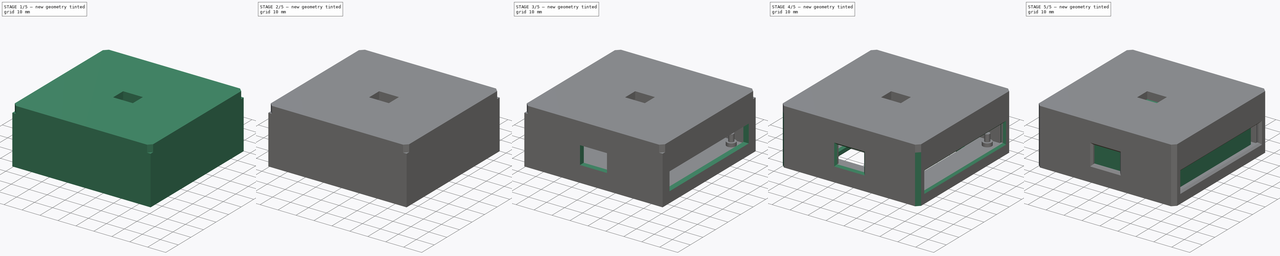
[diagram: build sequence overview — one tinted view per stage of 5, left to right]
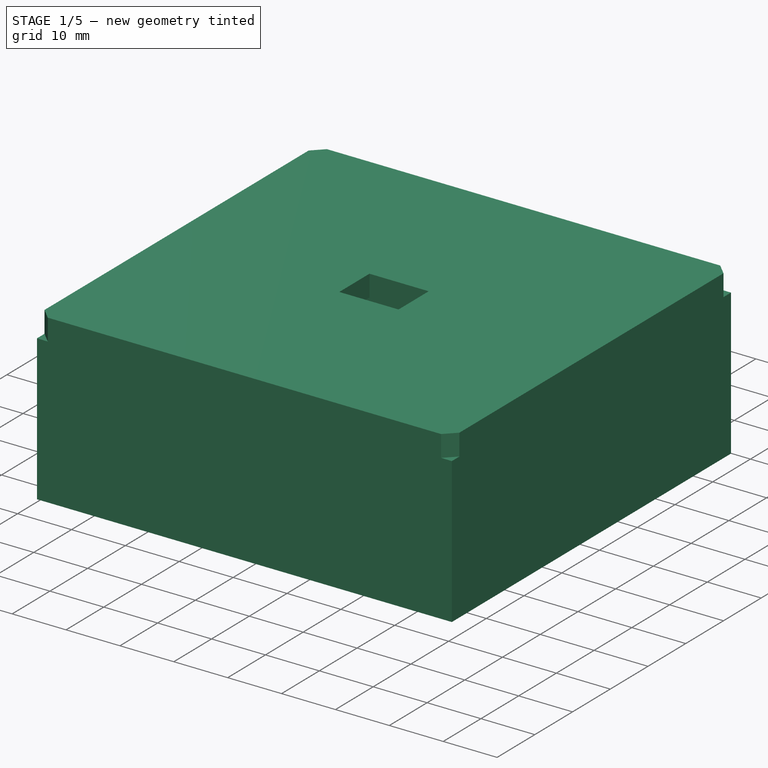
[diagram: stage 1 of 5 — iso view after this stage's code; geometry added in this stage tinted green]
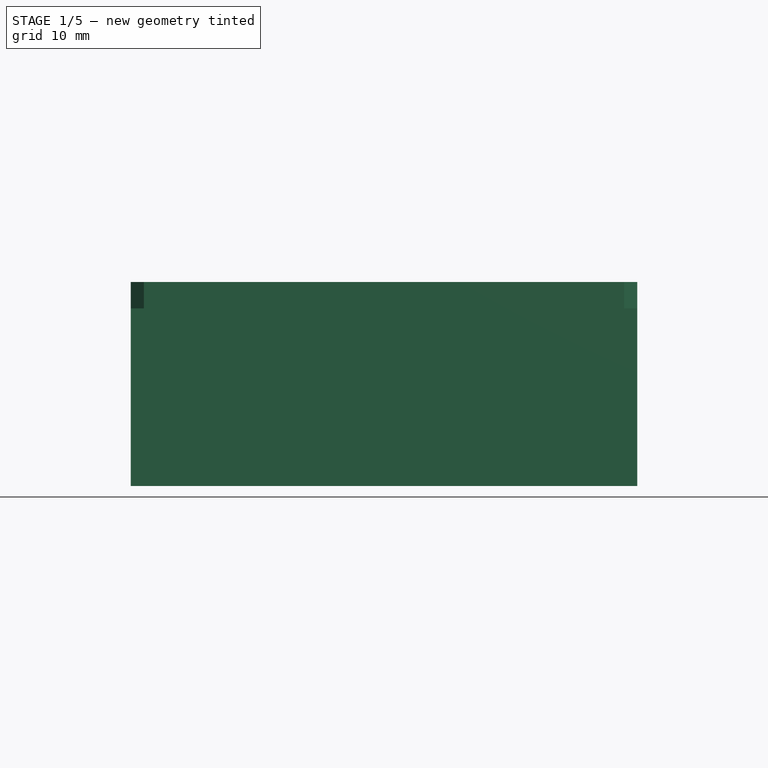
[diagram: stage 1 of 5 — front view after this stage's code; geometry added in this stage tinted green]
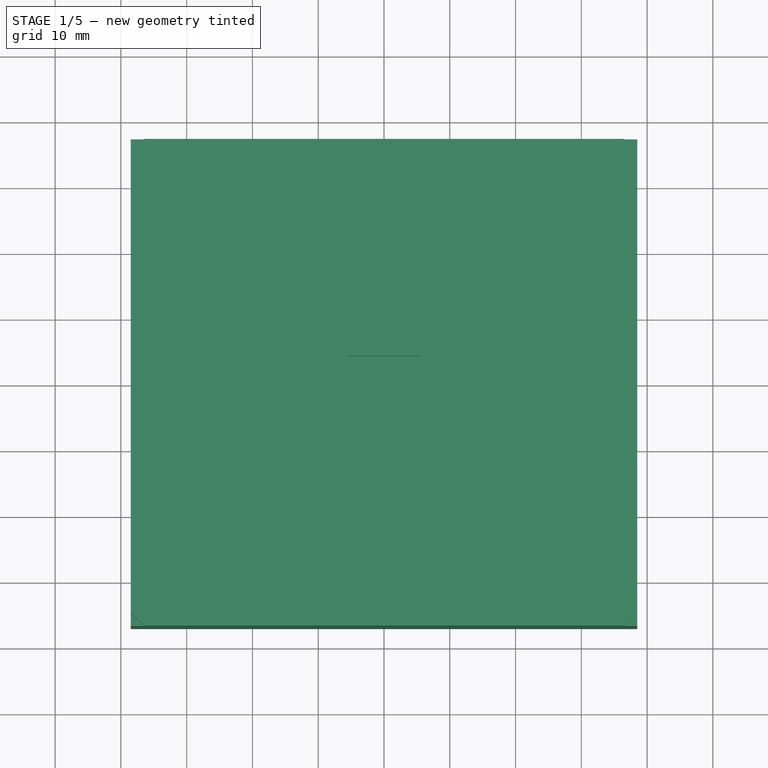
[diagram: stage 1 of 5 — top view after this stage's code; geometry added in this stage tinted green]
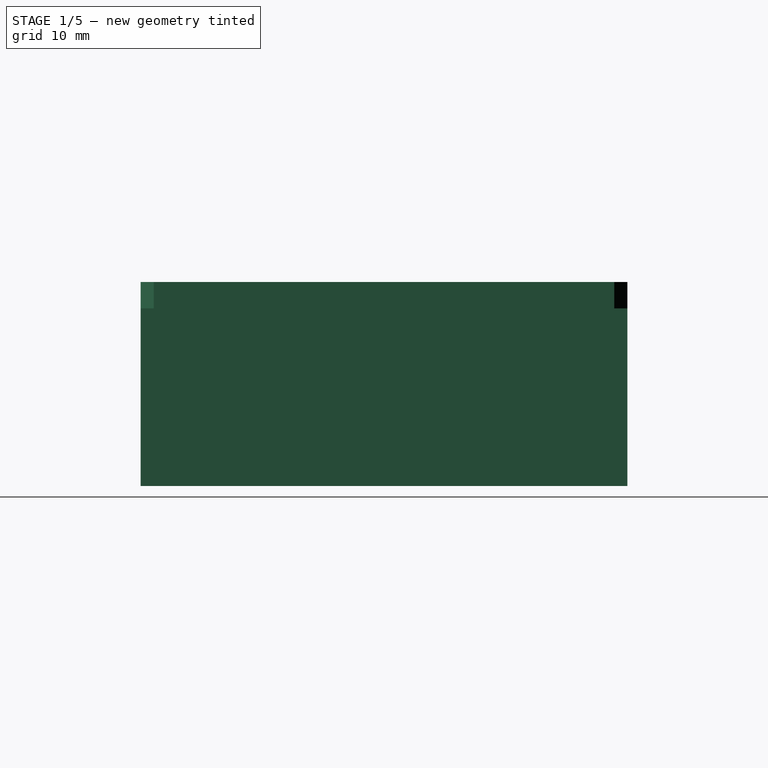
[diagram: stage 1 of 5 — right view after this stage's code; geometry added in this stage tinted green]
FCSTD DOCUMENT  (FreeCAD 0.21R33771 (Git))
Label: ESP32-housing
License: All rights reserved
LicenseURL: http://en.wikipedia.org/wiki/All_rights_reserved
objects: Sketcher::SketchObject×21, PartDesign::Pad×11, PartDesign::Pocket×10, PartDesign::Chamfer×5, PartDesign::Body×3, Spreadsheet::Sheet×1
note: 76 computed .brp shape members not serialized (recipe doc carries the construction recipe); baked Part::Feature solids carry a one-line shape summary decoded from their .brp

FEATURE [PartDesign::Body] Body  label="ESP32-BB"
  Group = -> [Sketch,Pad,Sketch001,Pocket,Sketch002,Pocket001,Sketch003,Pocket002,Sketch004,Pocket003]
  Origin = -> Origin
  Tip = -> Pocket003
FEATURE [Sketcher::SketchObject] Sketch005
  FullyConstrained = true
  MapMode = 5
  Support = -> [XY_Plane001]
  expr: Constraints[10] = Spreadsheet.ESP32_Housing_width
  expr: Constraints[11] = Spreadsheet.ESP32_Housing_length
  sketch-geometry (5):
    g0: LineSegment StartX=-38.5 StartY=37 StartZ=0 EndX=-38.5 EndY=-37 EndZ=0
    g1: LineSegment StartX=-38.5 StartY=-37 StartZ=0 EndX=38.5 EndY=-37 EndZ=0
    g2: LineSegment StartX=38.5 StartY=-37 StartZ=0 EndX=38.5 EndY=37 EndZ=0
    g3: LineSegment StartX=38.5 StartY=37 StartZ=0 EndX=-38.5 EndY=37 EndZ=0
    g4: GeomPoint X=0 Y=0 Z=0
  constraints (12):
    c: Coincident(g0,g1)
    c: Coincident(g1,g2)
    c: Coincident(g2,g3)
    c: Coincident(g3,g0)
    c: Horizontal(g1)
    c: Horizontal(g3)
    c: Vertical(g0)
    c: Vertical(g2)
    c: Symmetric(g1,g0,g4)
    c: Coincident(g4,g-1)
    c: DistanceX(g3,g3) = 77
    c: DistanceY(g0,g0) = 74
FEATURE [PartDesign::Pad] Pad001
  Direction = (0,0,1)
  Length = 27
  Length2 = 10
  Profile = -> Sketch005
  ReferenceAxis = -> Sketch005 [N_Axis]
  Type = 0
  expr: Length = Spreadsheet.ESP32_Housing_height
FEATURE [Sketcher::SketchObject] Sketch006
  FullyConstrained = true
  MapMode = 5
  Placement = pos=(0,0,27) rot=(0,0,1;0rad)
  Support = -> [Pad001]
  expr: Constraints[10] = Spreadsheet.ESP32_Housing_width_inside
  expr: Constraints[11] = Spreadsheet.ESP32_Housing_length_inside
  sketch-geometry (5):
    g0: LineSegment StartX=-35.5 StartY=34 StartZ=0 EndX=-35.5 EndY=-34 EndZ=0
    g1: LineSegment StartX=-35.5 StartY=-34 StartZ=0 EndX=35.5 EndY=-34 EndZ=0
    g2: LineSegment StartX=35.5 StartY=-34 StartZ=0 EndX=35.5 EndY=34 EndZ=0
    g3: LineSegment StartX=35.5 StartY=34 StartZ=0 EndX=-35.5 EndY=34 EndZ=0
    g4: GeomPoint X=0 Y=0 Z=0
  constraints (12):
    c: Coincident(g0,g1)
    c: Coincident(g1,g2)
    c: Coincident(g2,g3)
    c: Coincident(g3,g0)
    c: Horizontal(g1)
    c: Horizontal(g3)
    c: Vertical(g0)
    c: Vertical(g2)
    c: Symmetric(g1,g0,g4)
    c: Coincident(g4,g-1)
    c: DistanceX(g3,g3) = 71
    c: DistanceY(g2,g2) = 68
FEATURE [PartDesign::Pocket] Pocket004
  BaseFeature = -> Pad001
  Direction = (0,0,-1)
  Length = 23
  Length2 = 5
  Profile = -> Sketch006
  ReferenceAxis = -> Sketch006 [N_Axis]
  Type = 0
  expr: Length = Spreadsheet.ESP32_Housing_height - Spreadsheet.ESP32_Housing_floor_thickness
FEATURE [PartDesign::Body] Body001  label="ESP32-Housing"
  Group = -> [Sketch005,Pad001,Sketch006,Pocket004,Sketch007,Sketch008,Sketch009,Sketch010,Pad002,Pad003,Pad004,Pad005,Sketch011,Sketch012,Sketch013,Sketch014,Pad006,Pad007,Pad008,Pad009,Sketch015,Pocket005,Sketch016,Pocket006,Sketch017,Pocket007,Sketch018,Pocket008,Chamfer,Chamfer001,Chamfer002,Chamfer003]
  Origin = -> Origin001
  Tip = -> Chamfer003
FEATURE [Sketcher::SketchObject] Sketch019
  AttachmentOffset = pos=(0,0,27) rot=(0,0,1;0rad)
  FullyConstrained = true
  MapMode = 5
  Placement = pos=(0,0,27) rot=(0,0,1;0rad)
  Support = -> [XY_Plane002]
  expr: .AttachmentOffset.Base.z = Spreadsheet.ESP32_Lid_Z_start
  expr: Constraints[10] = Spreadsheet.ESP32_Lid_width
  expr: Constraints[11] = Spreadsheet.ESP32_Lid_length
  sketch-geometry (5):
    g0: LineSegment StartX=-38.5 StartY=37 StartZ=0 EndX=-38.5 EndY=-37 EndZ=0
    g1: LineSegment StartX=-38.5 StartY=-37 StartZ=0 EndX=38.5 EndY=-37 EndZ=0
    g2: LineSegment StartX=38.5 StartY=-37 StartZ=0 EndX=38.5 EndY=37 EndZ=0
    g3: LineSegment StartX=38.5 StartY=37 StartZ=0 EndX=-38.5 EndY=37 EndZ=0
    g4: GeomPoint X=0 Y=0 Z=0
  constraints (12):
    c: Coincident(g0,g1)
    c: Coincident(g1,g2)
    c: Coincident(g2,g3)
    c: Coincident(g3,g0)
    c: Horizontal(g1)
    c: Horizontal(g3)
    c: Vertical(g0)
    c: Vertical(g2)
    c: Symmetric(g1,g0,g4)
    c: Coincident(g4,g-1)
    c: DistanceX(g3,g3) = 77
    c: DistanceY(g2,g2) = 74
FEATURE [PartDesign::Pad] Pad010
  Direction = (0,0,1)
  Length = 4
  Length2 = 10
  Profile = -> Sketch019
  ReferenceAxis = -> Sketch019 [N_Axis]
  Type = 0
  expr: Length = Spreadsheet.ESP32_Lid_thickness
FEATURE [PartDesign::Chamfer] Chamfer004
  Angle = 45
  Base = -> Pad010 [Edge2,Edge5,Edge1,Edge8]
  BaseFeature = -> Pad010
  ChamferType = 0
  FlipDirection = false
  Size = 2
  Size2 = 1
  SupportTransform = false
  UseAllEdges = false
  expr: Size = Spreadsheet.ESP32_Lid_corner_chamfer
FEATURE [Sketcher::SketchObject] Sketch020
  FullyConstrained = true
  MapMode = 5
  Placement = pos=(0,0,31) rot=(0,0,1;0rad)
  Support = -> [Chamfer004]
  expr: Constraints[10] = Spreadsheet.ESP32_Lid_oled_length
  expr: Constraints[11] = Spreadsheet.ESP32_Lid_oled_width
  sketch-geometry (5):
    g0: LineSegment StartX=-5.5 StartY=4 StartZ=0 EndX=-5.5 EndY=-4 EndZ=0
    g1: LineSegment StartX=-5.5 StartY=-4 StartZ=0 EndX=5.5 EndY=-4 EndZ=0
    g2: LineSegment StartX=5.5 StartY=-4 StartZ=0 EndX=5.5 EndY=4 EndZ=0
    g3: LineSegment StartX=5.5 StartY=4 StartZ=0 EndX=-5.5 EndY=4 EndZ=0
    g4: GeomPoint X=0 Y=0 Z=0
  constraints (12):
    c: Coincident(g0,g1)
    c: Coincident(g1,g2)
    c: Coincident(g2,g3)
    c: Coincident(g3,g0)
    c: Horizontal(g1)
    c: Horizontal(g3)
    c: Vertical(g0)
    c: Vertical(g2)
    c: Symmetric(g1,g0,g4)
    c: Coincident(g4,g-1)
    c: DistanceX(g3,g3) = 11
    c: DistanceY(g2,g2) = 8
FEATURE [PartDesign::Pocket] Pocket009
  BaseFeature = -> Chamfer004
  Direction = (0,0,-1)
  Length = 0
  Length2 = 5
  Profile = -> Sketch020
  ReferenceAxis = -> Sketch020 [N_Axis]
  Type = 3
  UpToFace = -> Chamfer004 [Face2]
FEATURE [PartDesign::Body] Body002  label="ESP32-Housing-Lid"
  Group = -> [Sketch019,Pad010,Chamfer004,Sketch020,Pocket009]
  Origin = -> Origin002
  Tip = -> Pocket009
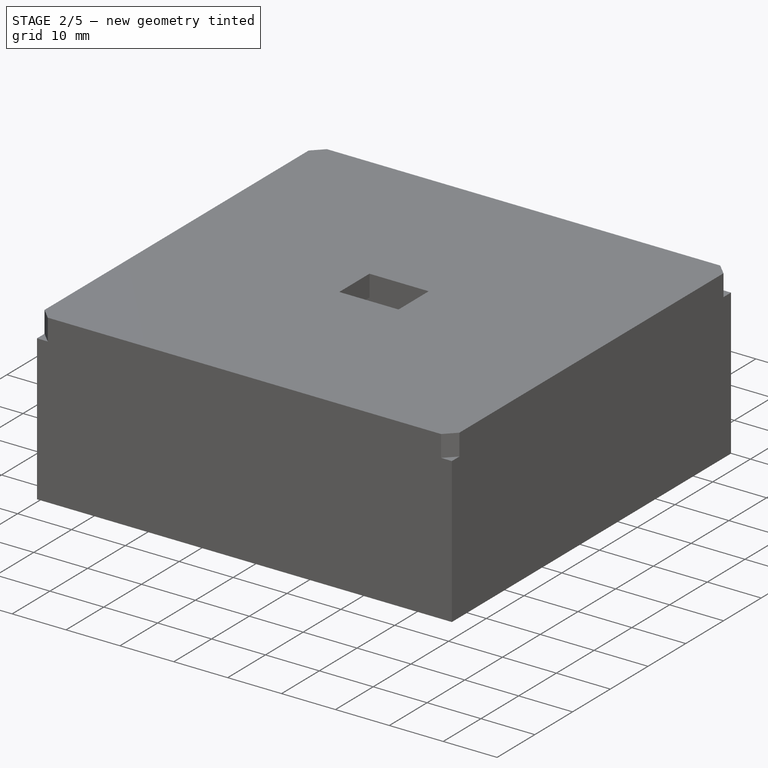
[diagram: stage 2 of 5 — iso view after this stage's code; geometry added in this stage tinted green]
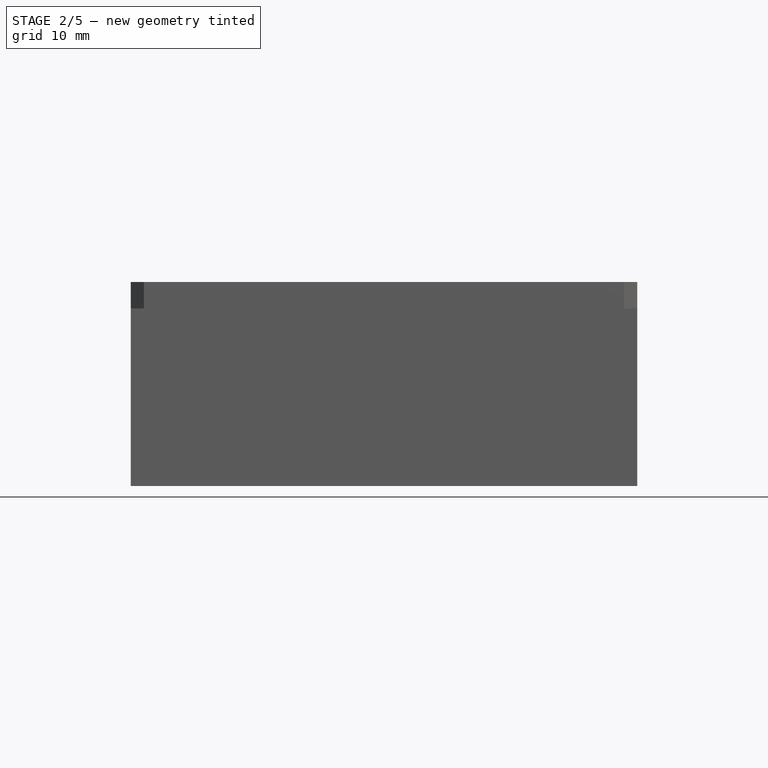
[diagram: stage 2 of 5 — front view after this stage's code; geometry added in this stage tinted green]
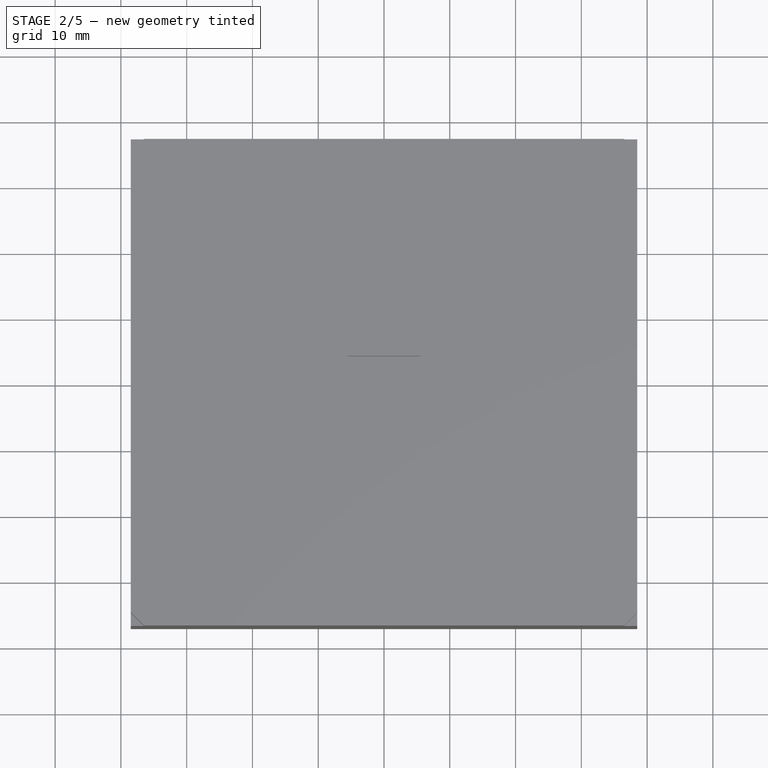
[diagram: stage 2 of 5 — top view after this stage's code; geometry added in this stage tinted green]
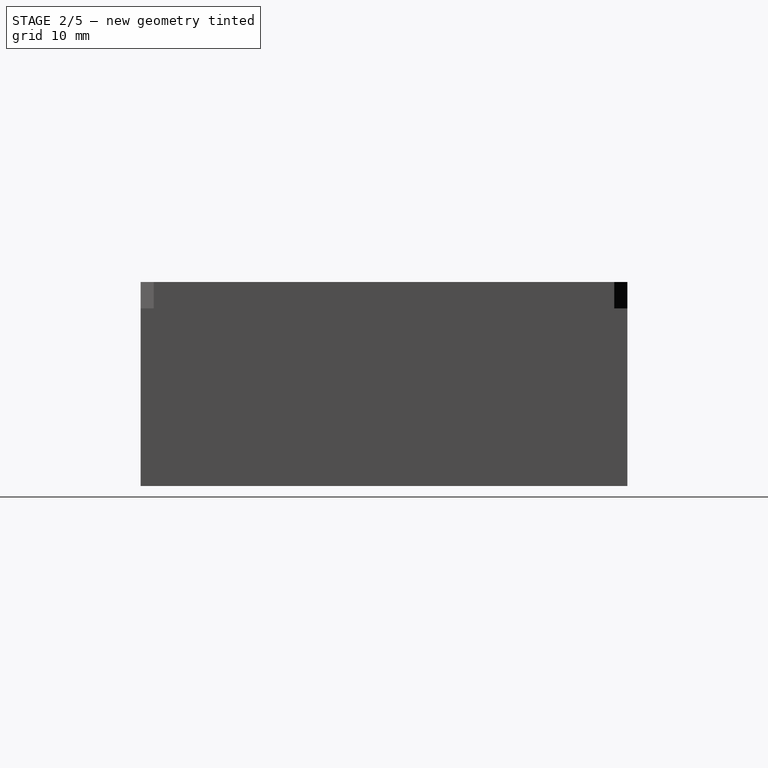
[diagram: stage 2 of 5 — right view after this stage's code; geometry added in this stage tinted green]
FEATURE [Sketcher::SketchObject] Sketch007
  FullyConstrained = true
  MapMode = 5
  Placement = pos=(0,0,4) rot=(0,0,1;0rad)
  Support = -> [Pocket004]
  expr: Constraints[0] = Spreadsheet.ESP32_Housing_post_base_radius
  expr: Constraints[1] = Spreadsheet.ESP32_BB_hole_position_NW_X
  expr: Constraints[2] = Spreadsheet.ESP32_BB_hole_position_NW_Y
  sketch-geometry (1):
    g0: Circle CenterX=30.5 CenterY=29 CenterZ=0 NormalX=0 NormalY=0 NormalZ=1 AngleXU=0 Radius=2.5
  constraints (3):
    c: Radius(g0) = 2.5
    c: DistanceX(g-1,g0) = 30.5
    c: DistanceY(g-1,g0) = 29
FEATURE [Sketcher::SketchObject] Sketch008
  FullyConstrained = true
  MapMode = 5
  Placement = pos=(0,0,4) rot=(0,0,1;0rad)
  Support = -> [Pocket004]
  expr: Constraints[0] = Spreadsheet.ESP32_Housing_post_base_radius
  expr: Constraints[1] = Spreadsheet.ESP32_BB_hole_position_SW_X
  expr: Constraints[2] = -Spreadsheet.ESP32_BB_hole_position_SW_Y
  sketch-geometry (1):
    g0: Circle CenterX=30.5 CenterY=-29 CenterZ=0 NormalX=0 NormalY=0 NormalZ=1 AngleXU=0 Radius=2.5
  constraints (3):
    c: Radius(g0) = 2.5
    c: DistanceX(g-1,g0) = 30.5
    c: DistanceY(g0,g-1) = 29
FEATURE [Sketcher::SketchObject] Sketch009
  FullyConstrained = true
  MapMode = 5
  Placement = pos=(0,0,4) rot=(0,0,1;0rad)
  Support = -> [Pocket004]
  expr: Constraints[0] = Spreadsheet.ESP32_Housing_post_base_radius
  expr: Constraints[1] = -Spreadsheet.ESP32_BB_hole_position_SE_Y
  expr: Constraints[2] = -Spreadsheet.ESP32_BB_hole_position_SE_X
  sketch-geometry (1):
    g0: Circle CenterX=-30.5 CenterY=-29 CenterZ=0 NormalX=0 NormalY=0 NormalZ=1 AngleXU=0 Radius=2.5
  constraints (3):
    c: Radius(g0) = 2.5
    c: DistanceY(g0,g-1) = 29
    c: DistanceX(g0,g-1) = 30.5
FEATURE [Sketcher::SketchObject] Sketch010
  FullyConstrained = true
  MapMode = 5
  Placement = pos=(0,0,4) rot=(0,0,1;0rad)
  Support = -> [Pocket004]
  expr: Constraints[0] = Spreadsheet.ESP32_Housing_post_base_radius
  expr: Constraints[1] = Spreadsheet.ESP32_BB_hole_position_NE_Y
  expr: Constraints[2] = -Spreadsheet.ESP32_BB_hole_position_SE_X
  sketch-geometry (1):
    g0: Circle CenterX=-30.5 CenterY=29 CenterZ=0 NormalX=0 NormalY=0 NormalZ=1 AngleXU=0 Radius=2.5
  constraints (3):
    c: Radius(g0) = 2.5
    c: DistanceY(g-1,g0) = 29
    c: DistanceX(g0,g-1) = 30.5
FEATURE [PartDesign::Pad] Pad002
  BaseFeature = -> Pocket004
  Direction = (0,0,1)
  Length = 2
  Length2 = 10
  Profile = -> Sketch007
  ReferenceAxis = -> Sketch007 [N_Axis]
  Type = 0
  expr: Length = Spreadsheet.ESP32_Housing_post_base_height
FEATURE [PartDesign::Pad] Pad003
  BaseFeature = -> Pad002
  Direction = (0,0,1)
  Length = 2
  Length2 = 10
  Profile = -> Sketch008
  ReferenceAxis = -> Sketch008 [N_Axis]
  Type = 0
  expr: Length = Spreadsheet.ESP32_Housing_post_base_height
FEATURE [PartDesign::Pad] Pad004
  BaseFeature = -> Pad003
  Direction = (0,0,1)
  Length = 2
  Length2 = 10
  Profile = -> Sketch009
  ReferenceAxis = -> Sketch009 [N_Axis]
  Type = 0
  expr: Length = Spreadsheet.ESP32_Housing_post_base_height
FEATURE [PartDesign::Pad] Pad005
  BaseFeature = -> Pad004
  Direction = (0,0,1)
  Length = 2
  Length2 = 10
  Profile = -> Sketch010
  ReferenceAxis = -> Sketch010 [N_Axis]
  Type = 0
  expr: Length = Spreadsheet.ESP32_Housing_post_base_height
FEATURE [Sketcher::SketchObject] Sketch011
  FullyConstrained = true
  MapMode = 5
  Placement = pos=(0,0,4) rot=(0,0,1;0rad)
  Support = -> [Pad005]
  expr: Constraints[0] = Spreadsheet.ESP32_Housing_post_radius
  expr: Constraints[1] = Spreadsheet.ESP32_BB_hole_position_NW_Y
  expr: Constraints[2] = Spreadsheet.ESP32_BB_hole_position_NW_X
  sketch-geometry (1):
    g0: Circle CenterX=30.5 CenterY=29 CenterZ=0 NormalX=0 NormalY=0 NormalZ=1 AngleXU=0 Radius=1.4
  constraints (3):
    c: Radius(g0) = 1.4
    c: DistanceY(g-1,g0) = 29
    c: DistanceX(g-1,g0) = 30.5
FEATURE [Sketcher::SketchObject] Sketch012
  FullyConstrained = true
  MapMode = 5
  Placement = pos=(0,0,4) rot=(0,0,1;0rad)
  Support = -> [Pad005]
  expr: Constraints[0] = Spreadsheet.ESP32_BB_hole_position_SW_X
  expr: Constraints[1] = -Spreadsheet.ESP32_BB_hole_position_SW_Y
  expr: Constraints[2] = Spreadsheet.ESP32_Housing_post_radius
  sketch-geometry (1):
    g0: Circle CenterX=30.5 CenterY=-29 CenterZ=0 NormalX=0 NormalY=0 NormalZ=1 AngleXU=0 Radius=1.4
  constraints (3):
    c: DistanceX(g-1,g0) = 30.5
    c: DistanceY(g0,g-1) = 29
    c: Radius(g0) = 1.4
FEATURE [Sketcher::SketchObject] Sketch013
  FullyConstrained = true
  MapMode = 5
  Placement = pos=(0,0,4) rot=(0,0,1;0rad)
  Support = -> [Pad005]
  expr: Constraints[0] = -Spreadsheet.ESP32_BB_hole_position_SE_Y
  expr: Constraints[1] = -Spreadsheet.ESP32_BB_hole_position_SE_X
  expr: Constraints[2] = Spreadsheet.ESP32_Housing_post_radius
  sketch-geometry (1):
    g0: Circle CenterX=-30.5 CenterY=-29 CenterZ=0 NormalX=0 NormalY=0 NormalZ=1 AngleXU=0 Radius=1.4
  constraints (3):
    c: DistanceY(g0,g-1) = 29
    c: DistanceX(g0,g-1) = 30.5
    c: Radius(g0) = 1.4
FEATURE [Sketcher::SketchObject] Sketch014
  FullyConstrained = true
  MapMode = 5
  Placement = pos=(0,0,4) rot=(0,0,1;0rad)
  Support = -> [Pad005]
  expr: Constraints[0] = -Spreadsheet.ESP32_BB_hole_position_NE_X
  expr: Constraints[1] = Spreadsheet.ESP32_BB_hole_position_NE_Y
  expr: Constraints[2] = Spreadsheet.ESP32_Housing_post_radius
  sketch-geometry (1):
    g0: Circle CenterX=-30.5 CenterY=29 CenterZ=0 NormalX=0 NormalY=0 NormalZ=1 AngleXU=0 Radius=1.4
  constraints (3):
    c: DistanceX(g0,g-1) = 30.5
    c: DistanceY(g-1,g0) = 29
    c: Radius(g0) = 1.4
FEATURE [PartDesign::Pad] Pad006
  BaseFeature = -> Pad005
  Direction = (0,0,1)
  Length = 6
  Length2 = 10
  Profile = -> Sketch011
  ReferenceAxis = -> Sketch011 [N_Axis]
  Type = 0
  expr: Length = Spreadsheet.ESP32_Housing_post_real_height
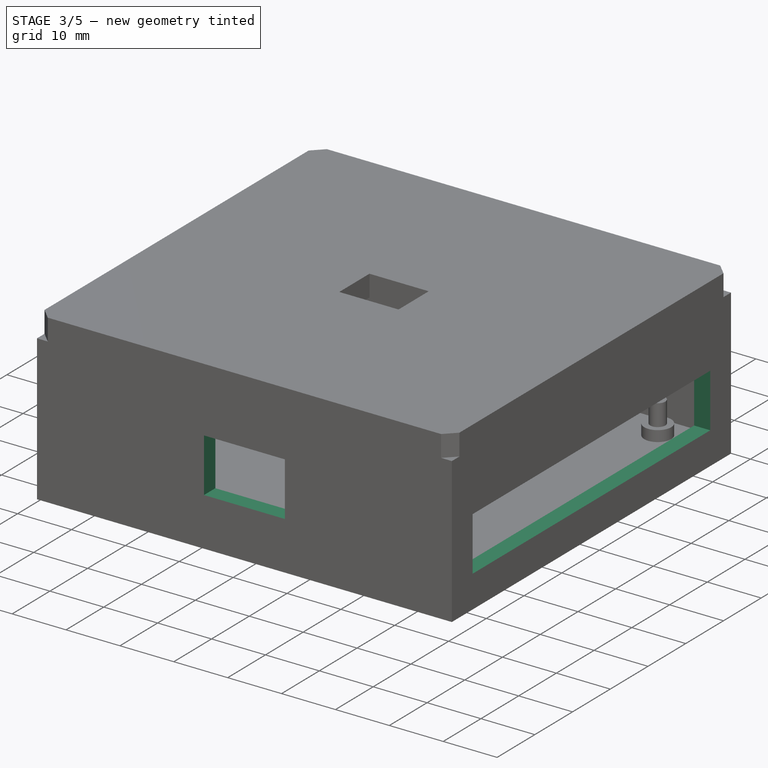
[diagram: stage 3 of 5 — iso view after this stage's code; geometry added in this stage tinted green]
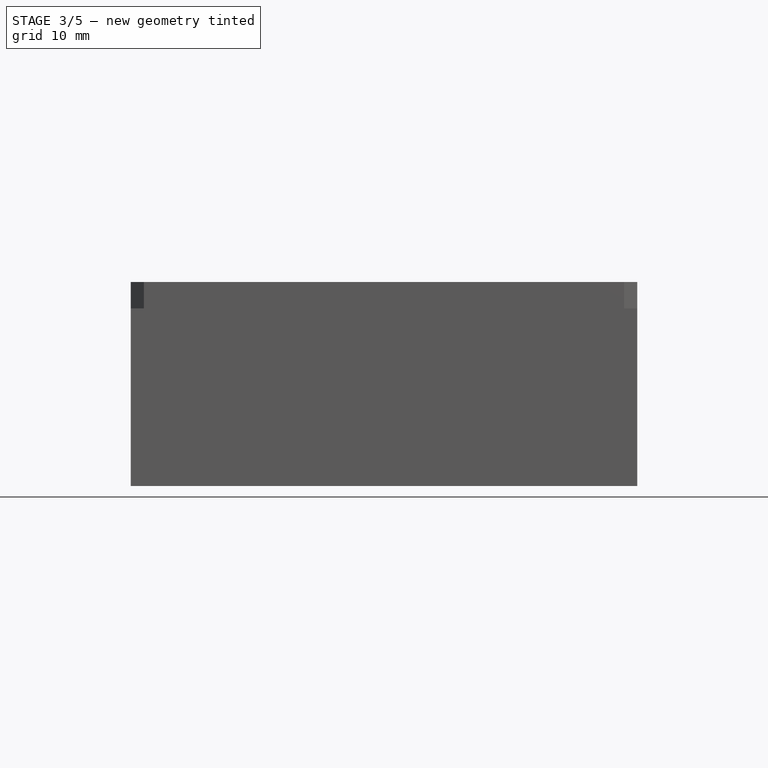
[diagram: stage 3 of 5 — front view after this stage's code; geometry added in this stage tinted green]
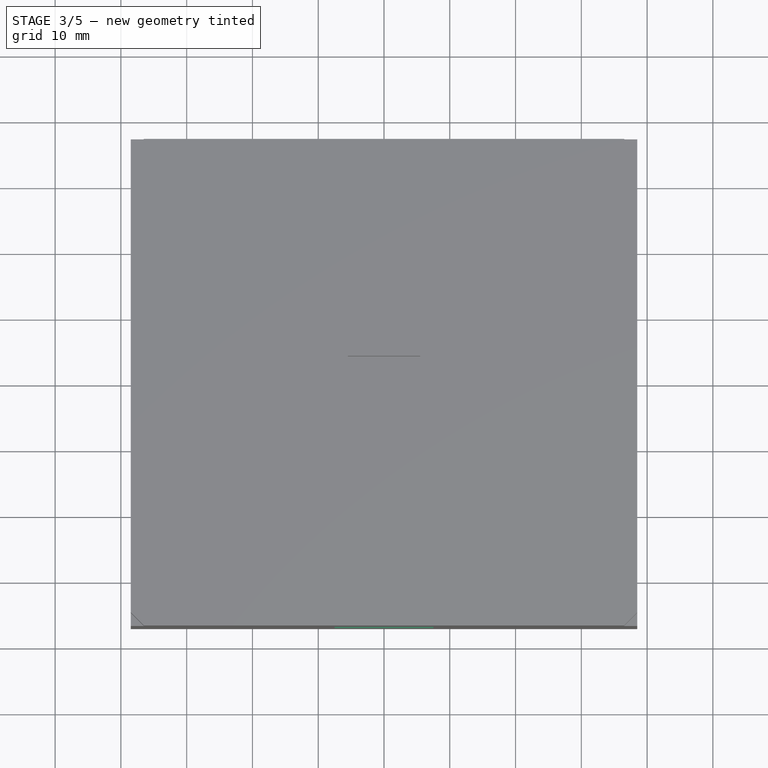
[diagram: stage 3 of 5 — top view after this stage's code; geometry added in this stage tinted green]
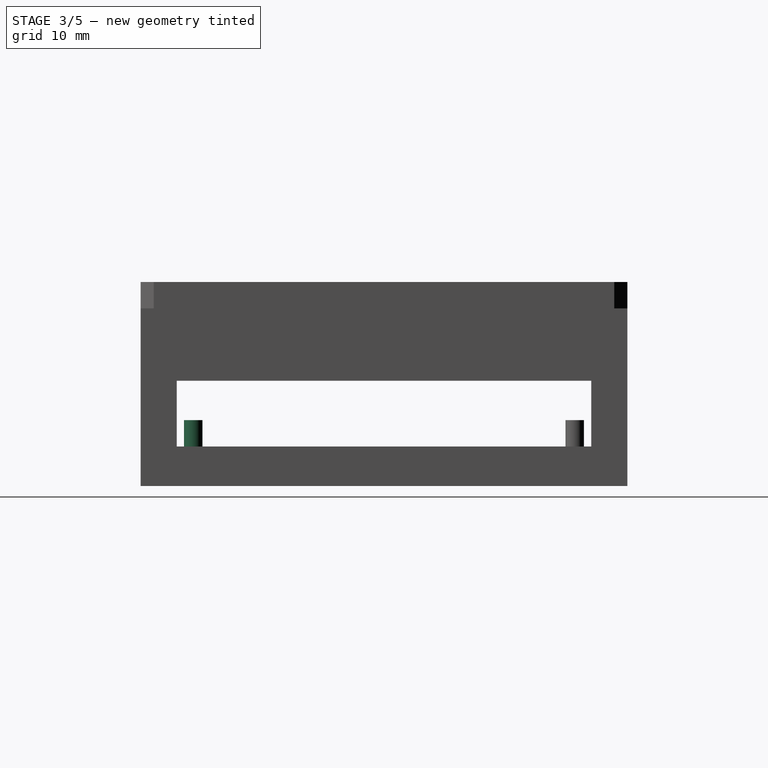
[diagram: stage 3 of 5 — right view after this stage's code; geometry added in this stage tinted green]
FEATURE [PartDesign::Pad] Pad007
  BaseFeature = -> Pad006
  Direction = (0,0,1)
  Length = 6
  Length2 = 10
  Profile = -> Sketch012
  ReferenceAxis = -> Sketch012 [N_Axis]
  Type = 0
  expr: Length = Spreadsheet.ESP32_Housing_post_real_height
FEATURE [PartDesign::Pad] Pad008
  BaseFeature = -> Pad007
  Direction = (0,0,1)
  Length = 6
  Length2 = 10
  Profile = -> Sketch013
  ReferenceAxis = -> Sketch013 [N_Axis]
  Type = 0
  expr: Length = Spreadsheet.ESP32_Housing_post_real_height
FEATURE [PartDesign::Pad] Pad009
  BaseFeature = -> Pad008
  Direction = (0,0,1)
  Length = 6
  Length2 = 10
  Profile = -> Sketch014
  ReferenceAxis = -> Sketch014 [N_Axis]
  Type = 0
  expr: Length = Spreadsheet.ESP32_Housing_post_real_height
FEATURE [Sketcher::SketchObject] Sketch015
  FullyConstrained = true
  MapMode = 5
  Placement = pos=(-38.5,0,0) rot=(0.57735,-0.57735,-0.57735;2.0944rad)
  Support = -> [Pad009]
  expr: Constraints[10] = Spreadsheet.ESP32_Housing_side_cut_width
  expr: Constraints[11] = Spreadsheet.ESP32_Housing_side_cut_start_from_bottom
  expr: Constraints[9] = Spreadsheet.ESP32_Housing_side_cut_length
  sketch-geometry (5):
    g0: LineSegment StartX=-31.5 StartY=16 StartZ=0 EndX=-31.5 EndY=6 EndZ=0
    g1: LineSegment StartX=-31.5 StartY=6 StartZ=0 EndX=31.5 EndY=6 EndZ=0
    g2: LineSegment StartX=31.5 StartY=6 StartZ=0 EndX=31.5 EndY=16 EndZ=0
    g3: LineSegment StartX=31.5 StartY=16 StartZ=0 EndX=-31.5 EndY=16 EndZ=0
    g4: GeomPoint X=0 Y=11 Z=0
  constraints (13):
    c: Coincident(g0,g1)
    c: Coincident(g1,g2)
    c: Coincident(g2,g3)
    c: Coincident(g3,g0)
    c: Horizontal(g1)
    c: Horizontal(g3)
    c: Vertical(g0)
    c: Vertical(g2)
    c: Symmetric(g1,g0,g4)
    c: DistanceX(g3,g3) = 63
    c: DistanceY(g2,g2) = 10
    c: DistanceY(g-1,g4) = 11
    c: DistanceX(g-1,g4) = 0
FEATURE [PartDesign::Pocket] Pocket005
  BaseFeature = -> Pad009
  Direction = (1,0,0)
  Length = 0
  Length2 = 5
  Profile = -> Sketch015
  ReferenceAxis = -> Sketch015 [N_Axis]
  Type = 3
  UpToFace = -> Pad009 [Face7]
FEATURE [Sketcher::SketchObject] Sketch016
  FullyConstrained = true
  MapMode = 5
  Placement = pos=(38.5,0,0) rot=(0.57735,0.57735,0.57735;2.0944rad)
  Support = -> [Pocket005]
  expr: Constraints[10] = Spreadsheet.ESP32_Housing_side_cut_width
  expr: Constraints[11] = Spreadsheet.ESP32_Housing_side_cut_start_from_bottom
  expr: Constraints[9] = Spreadsheet.ESP32_Housing_side_cut_length
  sketch-geometry (5):
    g0: LineSegment StartX=-31.5 StartY=16 StartZ=0 EndX=-31.5 EndY=6 EndZ=0
    g1: LineSegment StartX=-31.5 StartY=6 StartZ=0 EndX=31.5 EndY=6 EndZ=0
    g2: LineSegment StartX=31.5 StartY=6 StartZ=0 EndX=31.5 EndY=16 EndZ=0
    g3: LineSegment StartX=31.5 StartY=16 StartZ=0 EndX=-31.5 EndY=16 EndZ=0
    g4: GeomPoint X=0 Y=11 Z=0
  constraints (13):
    c: Coincident(g0,g1)
    c: Coincident(g1,g2)
    c: Coincident(g2,g3)
    c: Coincident(g3,g0)
    c: Horizontal(g1)
    c: Horizontal(g3)
    c: Vertical(g0)
    c: Vertical(g2)
    c: Symmetric(g1,g0,g4)
    c: DistanceX(g3,g3) = 63
    c: DistanceY(g2,g2) = 10
    c: DistanceY(g-1,g4) = 11
    c: DistanceX(g4,g-1) = 0
FEATURE [PartDesign::Pocket] Pocket006
  BaseFeature = -> Pocket005
  Direction = (-1,0,0)
  Length = 5
  Length2 = 5
  Profile = -> Sketch016
  ReferenceAxis = -> Sketch016 [N_Axis]
  Type = 3
  UpToFace = -> Pocket005 [Face13]
  expr: Length = 5 mm
FEATURE [Sketcher::SketchObject] Sketch017
  FullyConstrained = true
  MapMode = 5
  Placement = pos=(0,-37,0) rot=(1,0,0;1.5708rad)
  Support = -> [Pocket006]
  expr: Constraints[10] = Spreadsheet.ESP32_Housing_usb_cut_length
  expr: Constraints[11] = Spreadsheet.ESP32_Housing_usb_cut_width
  expr: Constraints[12] = Spreadsheet.ESP32_Housing_usb_cut_start_from_bottom
  sketch-geometry (5):
    g0: LineSegment StartX=-7.5 StartY=19 StartZ=0 EndX=-7.5 EndY=9 EndZ=0
    g1: LineSegment StartX=-7.5 StartY=9 StartZ=0 EndX=7.5 EndY=9 EndZ=0
    g2: LineSegment StartX=7.5 StartY=9 StartZ=0 EndX=7.5 EndY=19 EndZ=0
    g3: LineSegment StartX=7.5 StartY=19 StartZ=0 EndX=-7.5 EndY=19 EndZ=0
    g4: GeomPoint X=0 Y=14 Z=0
  constraints (13):
    c: Coincident(g0,g1)
    c: Coincident(g1,g2)
    c: Coincident(g2,g3)
    c: Coincident(g3,g0)
    c: Horizontal(g1)
    c: Horizontal(g3)
    c: Vertical(g0)
    c: Vertical(g2)
    c: Symmetric(g1,g0,g4)
    c: DistanceX(g4,g-1) = 0
    c: DistanceX(g3,g3) = 15
    c: DistanceY(g2,g2) = 10
    c: DistanceY(g-1,g4) = 14
FEATURE [PartDesign::Pocket] Pocket007
  BaseFeature = -> Pocket006
  Direction = (0,1,-2e-16)
  Length = 0
  Length2 = 5
  Profile = -> Sketch017
  ReferenceAxis = -> Sketch017 [N_Axis]
  Type = 3
  UpToFace = -> Pocket006 [Face12]
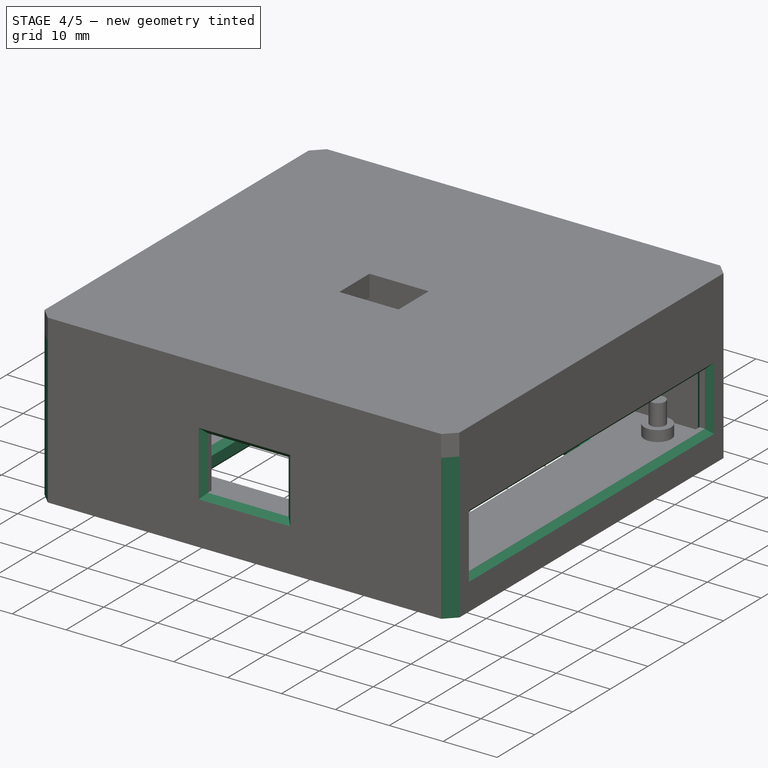
[diagram: stage 4 of 5 — iso view after this stage's code; geometry added in this stage tinted green]
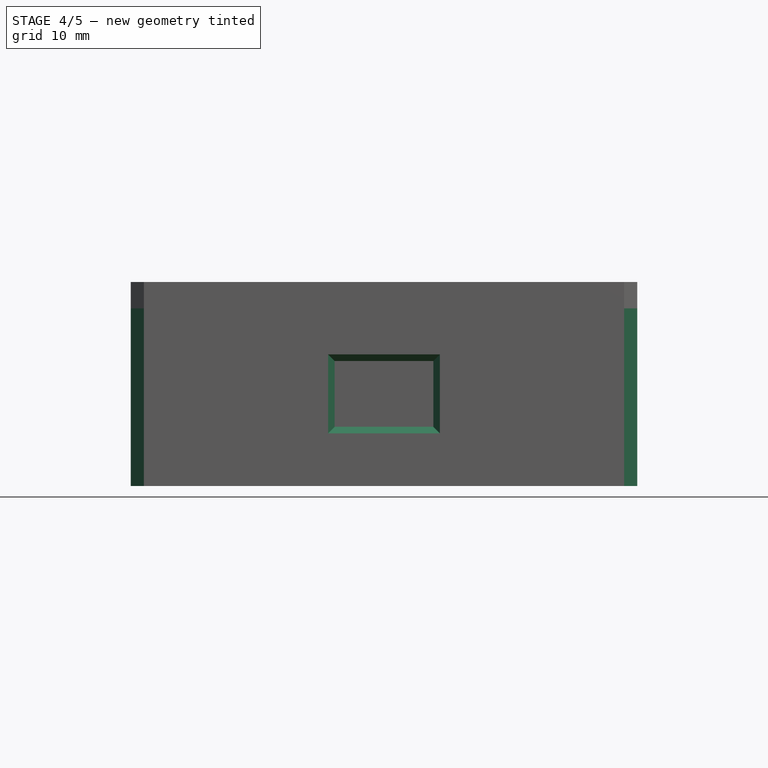
[diagram: stage 4 of 5 — front view after this stage's code; geometry added in this stage tinted green]
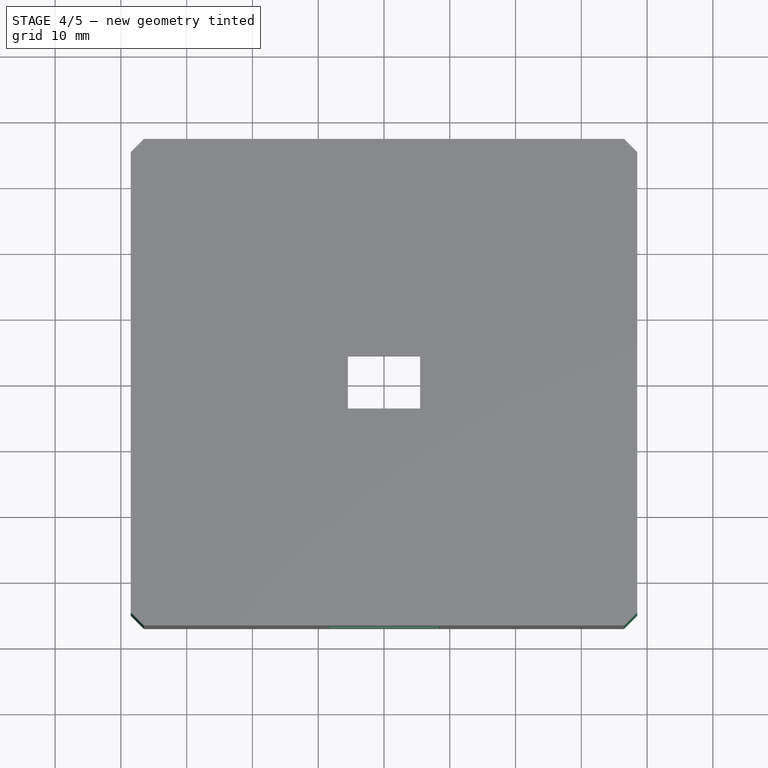
[diagram: stage 4 of 5 — top view after this stage's code; geometry added in this stage tinted green]
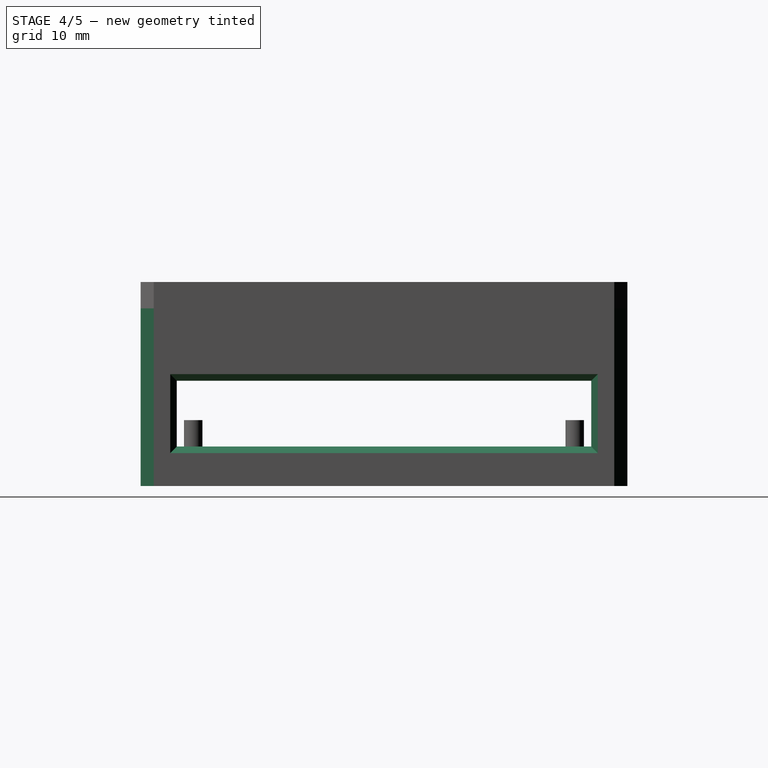
[diagram: stage 4 of 5 — right view after this stage's code; geometry added in this stage tinted green]
FEATURE [Sketcher::SketchObject] Sketch018
  FullyConstrained = true
  MapMode = 5
  Placement = pos=(0,0,0) rot=(1,0,0;3.14159rad)
  Support = -> [Pocket007]
  expr: Constraints[10] = Spreadsheet.ESP32_Housing_floor_cut_length
  expr: Constraints[11] = Spreadsheet.ESP32_Housing_floor_cut_width
  sketch-geometry (5):
    g0: LineSegment StartX=-22 StartY=21 StartZ=0 EndX=-22 EndY=-21 EndZ=0
    g1: LineSegment StartX=-22 StartY=-21 StartZ=0 EndX=22 EndY=-21 EndZ=0
    g2: LineSegment StartX=22 StartY=-21 StartZ=0 EndX=22 EndY=21 EndZ=0
    g3: LineSegment StartX=22 StartY=21 StartZ=0 EndX=-22 EndY=21 EndZ=0
    g4: GeomPoint X=0 Y=0 Z=0
  constraints (12):
    c: Coincident(g0,g1)
    c: Coincident(g1,g2)
    c: Coincident(g2,g3)
    c: Coincident(g3,g0)
    c: Horizontal(g1)
    c: Horizontal(g3)
    c: Vertical(g0)
    c: Vertical(g2)
    c: Symmetric(g1,g0,g4)
    c: Coincident(g4,g-1)
    c: DistanceY(g2,g2) = 42
    c: DistanceX(g3,g3) = 44
FEATURE [PartDesign::Pocket] Pocket008
  BaseFeature = -> Pocket007
  Direction = (0,0,1)
  Length = 0
  Length2 = 5
  Profile = -> Sketch018
  ReferenceAxis = -> Sketch018 [N_Axis]
  Type = 3
  UpToFace = -> Pocket007 [Face23]
FEATURE [PartDesign::Chamfer] Chamfer
  Angle = 45
  Base = -> Pocket008 [Edge27,Edge28,Edge54,Edge55,Edge25,Edge57,Edge56,Edge26]
  BaseFeature = -> Pocket008
  ChamferType = 0
  FlipDirection = false
  Size = 1
  Size2 = 1
  SupportTransform = false
  UseAllEdges = false
FEATURE [PartDesign::Chamfer] Chamfer001
  Angle = 45
  Base = -> Chamfer [Edge5,Edge8,Edge17,Edge36]
  BaseFeature = -> Chamfer
  ChamferType = 0
  FlipDirection = false
  Size = 2
  Size2 = 1
  SupportTransform = false
  UseAllEdges = false
  expr: Size = Spreadsheet.ESP32_Housing_corner_chamfer
FEATURE [PartDesign::Chamfer] Chamfer002
  Angle = 45
  Base = -> Chamfer001 [Edge17,Edge56,Edge18,Edge58,Edge60,Edge19,Edge16,Edge54]
  BaseFeature = -> Chamfer001
  ChamferType = 0
  FlipDirection = false
  Size = 1
  Size2 = 1
  SupportTransform = false
  UseAllEdges = false
FEATURE [PartDesign::Chamfer] Chamfer003
  Angle = 45
  Base = -> Chamfer002 [Edge25,Edge26,Edge24,Edge67,Edge65,Edge63,Edge68,Edge27,Edge47,Edge83,Edge80,Edge46,Edge79,Edge84,Edge48,Edge45]
  BaseFeature = -> Chamfer002
  ChamferType = 0
  FlipDirection = false
  Size = 1
  Size2 = 1
  SupportTransform = false
  UseAllEdges = false
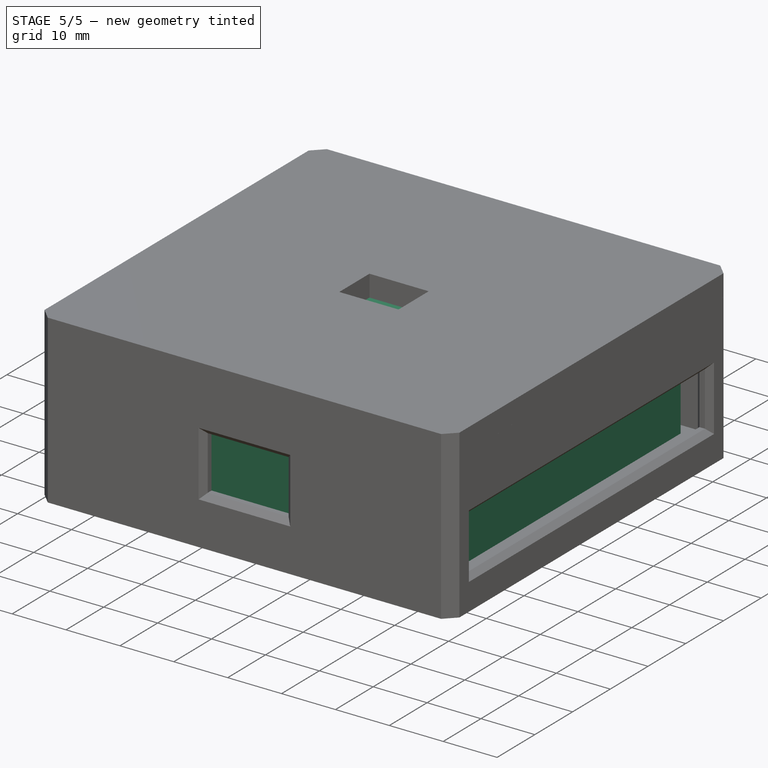
[diagram: stage 5 of 5 — iso view after this stage's code; geometry added in this stage tinted green]
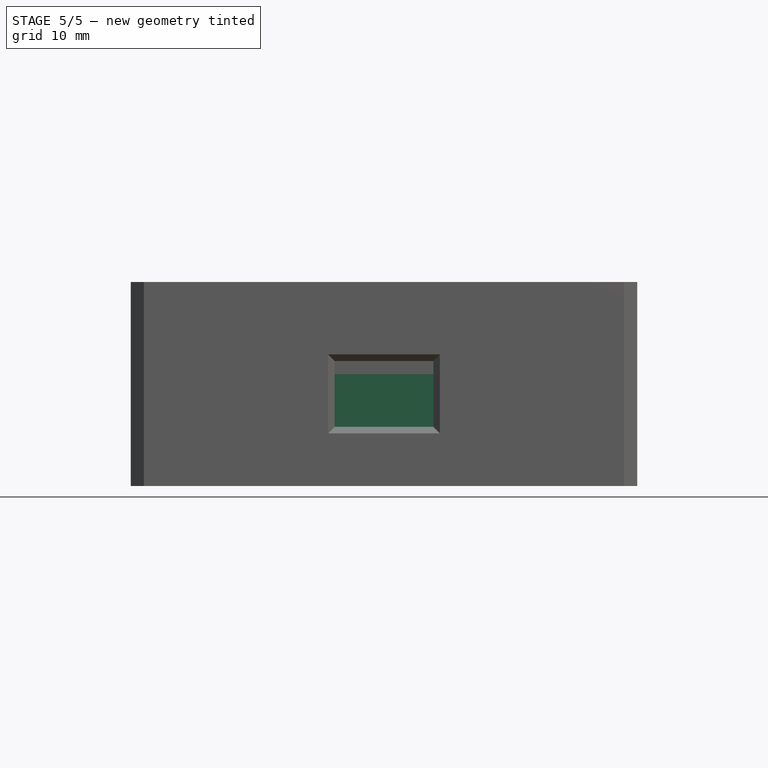
[diagram: stage 5 of 5 — front view after this stage's code; geometry added in this stage tinted green]
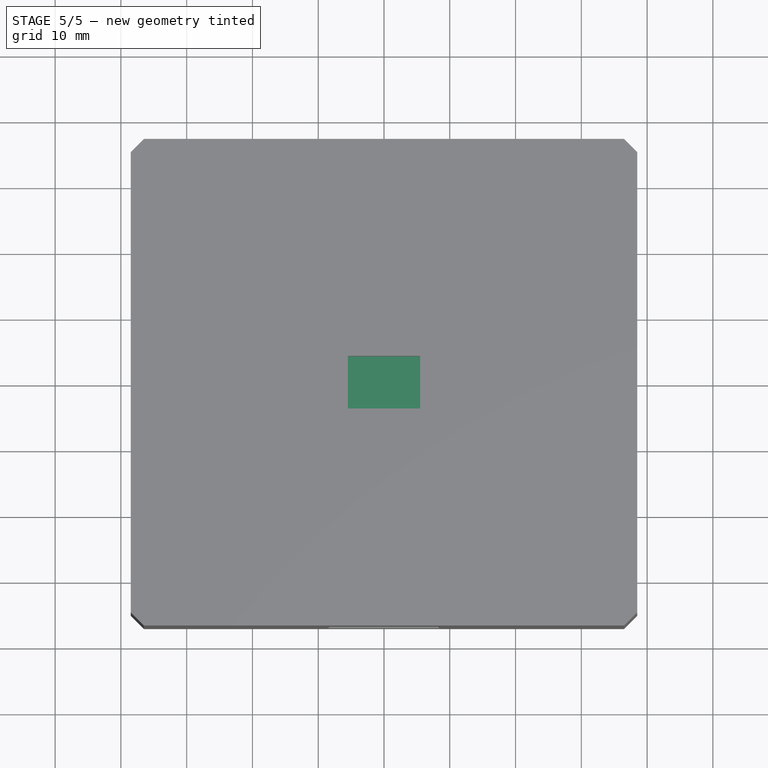
[diagram: stage 5 of 5 — top view after this stage's code; geometry added in this stage tinted green]
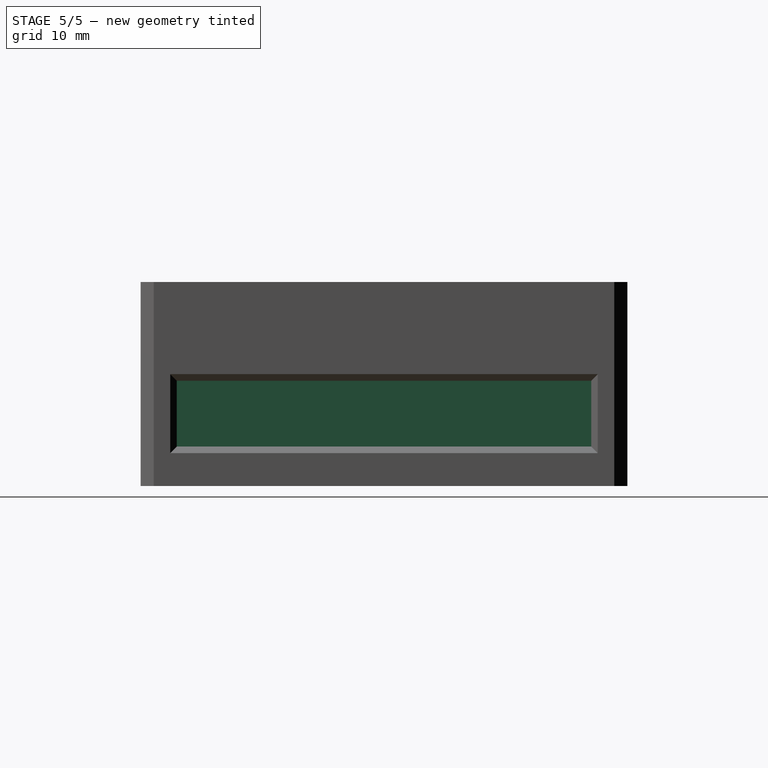
[diagram: stage 5 of 5 — right view after this stage's code; geometry added in this stage tinted green]
FEATURE [Spreadsheet::Sheet] Spreadsheet
  cells = A1='ESP32 Breakout Board; D1='ESP32 Housing; G1='ESP32 Housing Lid; A2='ESP32_BB_length; B2(ESP32_BB_length)=63; D2='ESP32_Housing_length_extra; E2(ESP32_Housing_length_extra)=5; G2='ESP32_Lid_length; H2(ESP32_Lid_length)==ESP32_Housing_length; A3='ESP32_BB_width; B3(ESP32_BB_width)=66; D3='ESP32_Housing_width_extra; E3(ESP32_Housing_width_extra)=5; G3='ESP32_Lid_width; H3(ESP32_Lid_width)==ESP32_Housing_width; A4='ESP32_BB_height; B4(ESP32_BB_height)=17; D4='ESP32_Housing_height_extra; E4(ESP32_Housing_height_extra)=8; G4='ESP32_Lid_thickness; H4(ESP32_Lid_thickness)=4; A5='ESP32_BB_hole_radius; B5(ESP32_BB_hole_radius)==3 / 2; D5='ESP32_Housing_length; E5(ESP32_Housing_length)==ESP32_BB_length + ESP32_Housing_length_extra + ESP32_Housing_wall_thickness; G5='ESP32_Lid_corner_chamfer; H5(ESP32_Lid_corner_chamfer)==ESP32_Housing_corner_chamfer; A6='ESP32_BB_hole_edge; B6(ESP32_BB_hole_edge)=1; D6='ESP32_Housing_width; E6(ESP32_Housing_width)==ESP32_BB_width + ESP32_Housing_width_extra + ESP32_Housing_wall_thickness; G6='ESP32_Lid_Z_start; H6(ESP32_Lid_Z_start)==ESP32_Housing_height; A7='ESP32_BB_hole_edge_offset; B7(ESP32_BB_hole_edge_offset)==ESP32_BB_hole_edge + ESP32_BB_hole_radius; D7='ESP32_Housing_height; E7(ESP32_Housing_height)==ESP32_BB_height + ESP32_Housing_height_extra + ESP32_Housing_post_base_height; A8='ESP32_BB_hole_edge_offset_X; B8(ESP32_BB_hole_edge_offset_X)==ESP32_BB_width / 2 - ESP32_BB_hole_edge_offset; G8='ESP32_Lid_oled_length; H8(ESP32_Lid_oled_length)=11; A9='ESP32_BB_hole_edge_offset_Y; B9(ESP32_BB_hole_edge_offset_Y)==ESP32_BB_length / 2 - ESP32_BB_hole_edge_offset; G9='ESP32_Lid_oled_width; H9(ESP32_Lid_oled_width)=8; A10='ESP32_BB_hole_position_NW_X; B10(ESP32_BB_hole_position_NW_X)==ESP32_BB_hole_edge_offset_X; D10='ESP32_Housing_length_inside; E10(ESP32_Housing_length_inside)==ESP32_BB_length + ESP32_Housing_length_extra; A11='ESP32_BB_hole_position_NW_Y; B11(ESP32_BB_hole_position_NW_Y)==ESP32_BB_hole_edge_offset_Y; D11='ESP32_Housing_width_inside; E11(ESP32_Housing_width_inside)==ESP32_BB_width + ESP32_Housing_width_extra; A12='ESP32_BB_hole_position_SW_X; B12(ESP32_BB_hole_position_SW_X)==ESP32_BB_hole_edge_offset_X; D12='ESP32_Housing_wall_thickness; E12(ESP32_Housing_wall_thickness)=6; A13='ESP32_BB_hole_position_SW_Y; B13(ESP32_BB_hole_position_SW_Y)==-ESP32_BB_hole_edge_offset_Y; D13='ESP32_Housing_floor_thickness; E13(ESP32_Housing_floor_thickness)=4; A14='ESP32_BB_hole_position_SE_X; B14(ESP32_BB_hole_position_SE_X)==-ESP32_BB_hole_edge_offset_X; A15='ESP32_BB_hole_position_SE_Y; B15(ESP32_BB_hole_position_SE_Y)==-ESP32_BB_hole_edge_offset_Y; D15='ESP32_Housing_post_radius_minus_tolerance; E15(ESP32_Housing_post_radius_minus_tolerance)=0.1; A16='ESP32_BB_hole_position_NE_X; B16(ESP32_BB_hole_position_NE_X)==-ESP32_BB_hole_edge_offset_X; D16='ESP32_Housing_post_radius; E16(ESP32_Housing_post_radius)==ESP32_BB_hole_radius - ESP32_Housing_post_radius_minus_tolerance; A17='ESP32_BB_hole_position_NE_Y; B17(ESP32_BB_hole_position_NE_Y)==ESP32_BB_hole_edge_offset_Y; D17='ESP32_Housing_post_height; E17(ESP32_Housing_post_height)=4; D18='ESP32_Housing_post_real_height; E18(ESP32_Housing_post_real_height)==ESP32_Housing_post_height + ESP32_Housing_post_base_height; D19='ESP32_Housing_post_base_radius; E19(ESP32_Housing_post_base_radius)=2.5; D20='ESP32_Housing_post_base_height; E20(ESP32_Housing_post_base_height)=2; D23='ESP32_Housing_side_cut_length_gap; E23(ESP32_Housing_side_cut_length_gap)=5; D24='ESP32_Housing_side_cut_width_gap; E24(ESP32_Housing_side_cut_width_gap)=5; D25='ESP32_Housing_side_cut_length; E25(ESP32_Housing_side_cut_length)==ESP32_Housing_length_inside - ESP32_Housing_side_cut_length_gap; D26='ESP32_Housing_side_cut_width; E26(ESP32_Housing_side_cut_width)=10; D27='ESP32_Housing_side_cut_start_from_bottom; E27(ESP32_Housing_side_cut_start_from_bottom)==ESP32_Housing_floor_thickness + ESP32_Housing_post_base_height + ESP32_Housing_side_cut_width / 2; D29='ESP32_Housing_usb_cut_length; E29(ESP32_Housing_usb_cut_length)=15; D30='ESP32_Housing_usb_cut_width; E30(ESP32_Housing_usb_cut_width)=10; D31='ESP32_Housing_usb_cut_start_from_bottom; E31(ESP32_Housing_usb_cut_start_from_bottom)=14; D32='ESP32_Housing_usb_cut_chamfer; E32(ESP32_Housing_usb_cut_chamfer)=2; D37='ESP32_Housing_floor_cut_length; E37(ESP32_Housing_floor_cut_length)==ESP32_BB_length / 1.5; D38='ESP32_Housing_floor_cut_width; E38(ESP32_Housing_floor_cut_width)==ESP32_BB_width / 1.5; D40='ESP32_Housing_corner_chamfer; E40(ESP32_Housing_corner_chamfer)=2; D42='ESP32_Housing_lid_block_length; E42==ESP32_BB_length / 1.5; D43='ESP32_Housing_lid_block_width; E43==ESP32_BB_width / 1.5
FEATURE [Sketcher::SketchObject] Sketch
  FullyConstrained = true
  MapMode = 5
  Support = -> [XY_Plane]
  expr: Constraints[10] = Spreadsheet.ESP32_BB_width
  expr: Constraints[11] = Spreadsheet.ESP32_BB_length
  sketch-geometry (5):
    g0: LineSegment StartX=-33 StartY=31.5 StartZ=0 EndX=-33 EndY=-31.5 EndZ=0
    g1: LineSegment StartX=-33 StartY=-31.5 StartZ=0 EndX=33 EndY=-31.5 EndZ=0
    g2: LineSegment StartX=33 StartY=-31.5 StartZ=0 EndX=33 EndY=31.5 EndZ=0
    g3: LineSegment StartX=33 StartY=31.5 StartZ=0 EndX=-33 EndY=31.5 EndZ=0
    g4: GeomPoint X=0 Y=0 Z=0
  constraints (12):
    c: Coincident(g0,g1)
    c: Coincident(g1,g2)
    c: Coincident(g2,g3)
    c: Coincident(g3,g0)
    c: Horizontal(g1)
    c: Horizontal(g3)
    c: Vertical(g0)
    c: Vertical(g2)
    c: Symmetric(g1,g0,g4)
    c: Coincident(g4,g-1)
    c: DistanceX(g3,g3) = 66
    c: DistanceY(g2,g2) = 63
FEATURE [PartDesign::Pad] Pad
  Direction = (0,0,1)
  Length = 17
  Length2 = 10
  Profile = -> Sketch
  ReferenceAxis = -> Sketch [N_Axis]
  Type = 0
  expr: Length = Spreadsheet.ESP32_BB_height
FEATURE [Sketcher::SketchObject] Sketch001
  FullyConstrained = true
  MapMode = 5
  Placement = pos=(0,0,17) rot=(0,0,1;0rad)
  Support = -> [Pad]
  expr: Constraints[0] = Spreadsheet.ESP32_BB_hole_radius
  expr: Constraints[1] = Spreadsheet.ESP32_BB_hole_position_NW_X
  expr: Constraints[2] = Spreadsheet.ESP32_BB_hole_position_NW_Y
  sketch-geometry (1):
    g0: Circle CenterX=30.5 CenterY=29 CenterZ=0 NormalX=0 NormalY=0 NormalZ=1 AngleXU=0 Radius=1.5
  constraints (3):
    c: Radius(g0) = 1.5
    c: DistanceX(g-1,g0) = 30.5
    c: DistanceY(g-1,g0) = 29
FEATURE [PartDesign::Pocket] Pocket
  BaseFeature = -> Pad
  Direction = (0,0,-1)
  Length = 0
  Length2 = 5
  Profile = -> Sketch001
  ReferenceAxis = -> Sketch001 [N_Axis]
  Type = 3
  UpToFace = -> Pad [Face5]
FEATURE [Sketcher::SketchObject] Sketch002
  FullyConstrained = true
  MapMode = 5
  Placement = pos=(0,0,17) rot=(0,0,1;0rad)
  Support = -> [Pocket]
  expr: Constraints[0] = Spreadsheet.ESP32_BB_hole_radius
  expr: Constraints[1] = -Spreadsheet.ESP32_BB_hole_position_SW_Y
  sketch-geometry (1):
    g0: Circle CenterX=30.5 CenterY=-29 CenterZ=0 NormalX=0 NormalY=0 NormalZ=1 AngleXU=0 Radius=1.5
  constraints (3):
    c: Radius(g0) = 1.5
    c: DistanceY(g0,g-1) = 29
    c: DistanceX(g-1,g0) = 30.5
FEATURE [PartDesign::Pocket] Pocket001
  BaseFeature = -> Pocket
  Direction = (0,0,-1)
  Length = 0
  Length2 = 5
  Profile = -> Sketch002
  ReferenceAxis = -> Sketch002 [N_Axis]
  Type = 3
  UpToFace = -> Pocket [Face4]
FEATURE [Sketcher::SketchObject] Sketch003
  FullyConstrained = true
  MapMode = 5
  Placement = pos=(0,0,17) rot=(0,0,1;0rad)
  Support = -> [Pocket001]
  expr: Constraints[0] = -Spreadsheet.ESP32_BB_hole_position_SE_Y
  expr: Constraints[1] = -Spreadsheet.ESP32_BB_hole_position_SE_X
  expr: Constraints[2] = Spreadsheet.ESP32_BB_hole_radius
  sketch-geometry (1):
    g0: Circle CenterX=-30.5 CenterY=-29 CenterZ=0 NormalX=0 NormalY=0 NormalZ=1 AngleXU=0 Radius=1.5
  constraints (3):
    c: DistanceY(g0,g-1) = 29
    c: DistanceX(g0,g-1) = 30.5
    c: Radius(g0) = 1.5
FEATURE [PartDesign::Pocket] Pocket002
  BaseFeature = -> Pocket001
  Direction = (0,0,-1)
  Length = 0
  Length2 = 5
  Profile = -> Sketch003
  ReferenceAxis = -> Sketch003 [N_Axis]
  Type = 3
  UpToFace = -> Pocket001 [Face4]
FEATURE [Sketcher::SketchObject] Sketch004
  FullyConstrained = true
  MapMode = 5
  Placement = pos=(0,0,17) rot=(0,0,1;0rad)
  Support = -> [Pocket002]
  expr: Constraints[0] = Spreadsheet.ESP32_BB_hole_position_NE_Y
  expr: Constraints[1] = -Spreadsheet.ESP32_BB_hole_position_NE_X
  expr: Constraints[2] = Spreadsheet.ESP32_BB_hole_radius
  sketch-geometry (1):
    g0: Circle CenterX=-30.5 CenterY=29 CenterZ=0 NormalX=0 NormalY=0 NormalZ=1 AngleXU=0 Radius=1.5
  constraints (3):
    c: DistanceY(g-1,g0) = 29
    c: DistanceX(g0,g-1) = 30.5
    c: Radius(g0) = 1.5
FEATURE [PartDesign::Pocket] Pocket003
  BaseFeature = -> Pocket002
  Direction = (0,0,-1)
  Length = 0
  Length2 = 5
  Profile = -> Sketch004
  ReferenceAxis = -> Sketch004 [N_Axis]
  Type = 3
  UpToFace = -> Pocket002 [Face4]
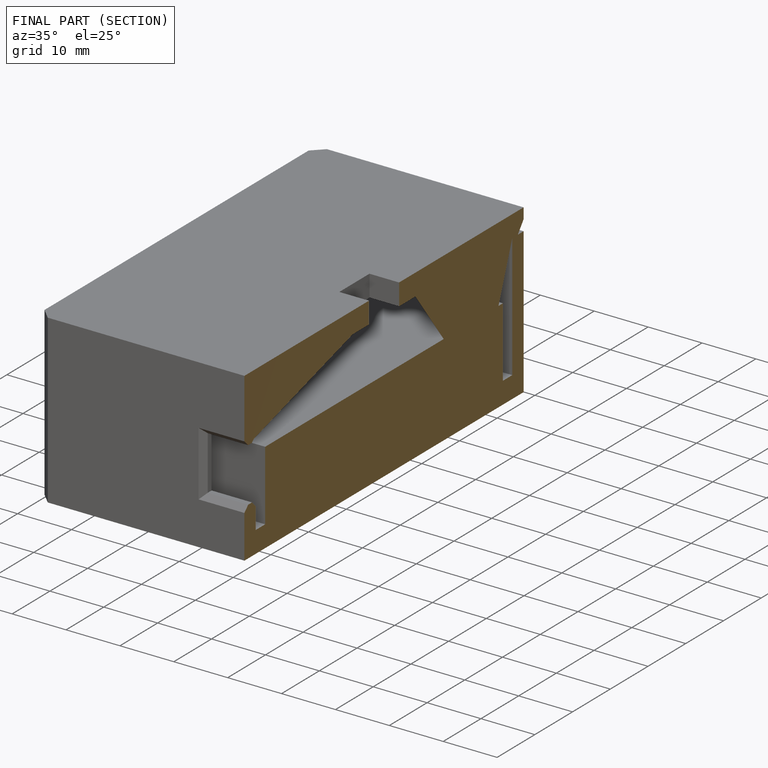
[diagram: finished part — half-section view (interior)]
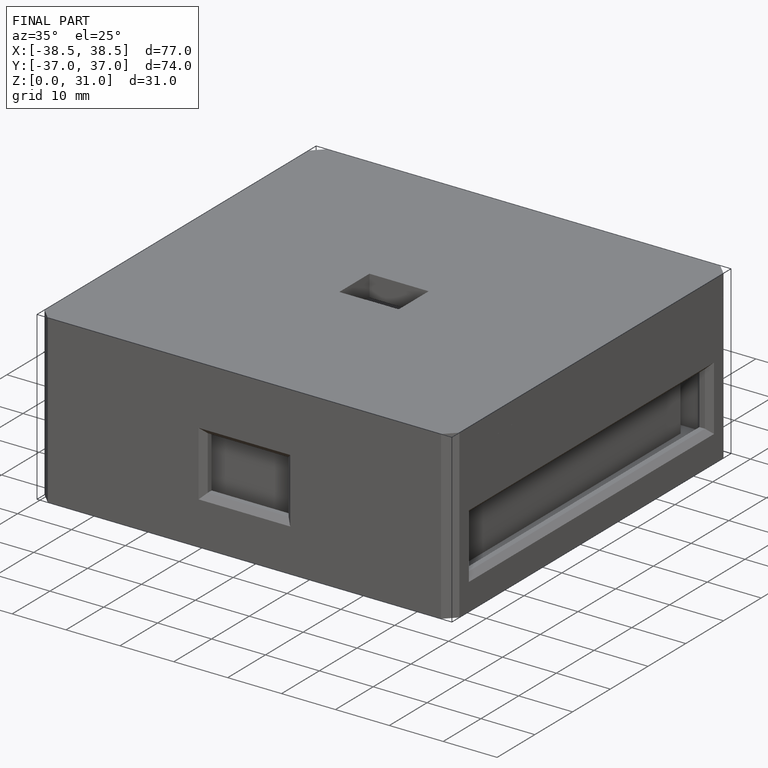
[diagram: finished part — iso view with bounding-box wireframe]
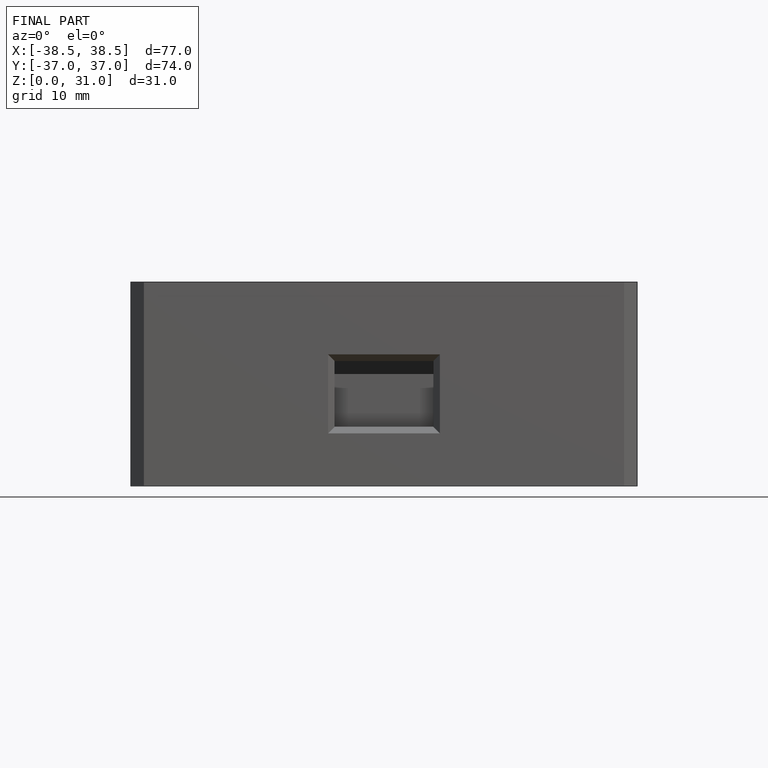
[diagram: finished part — front view with bounding-box wireframe]
